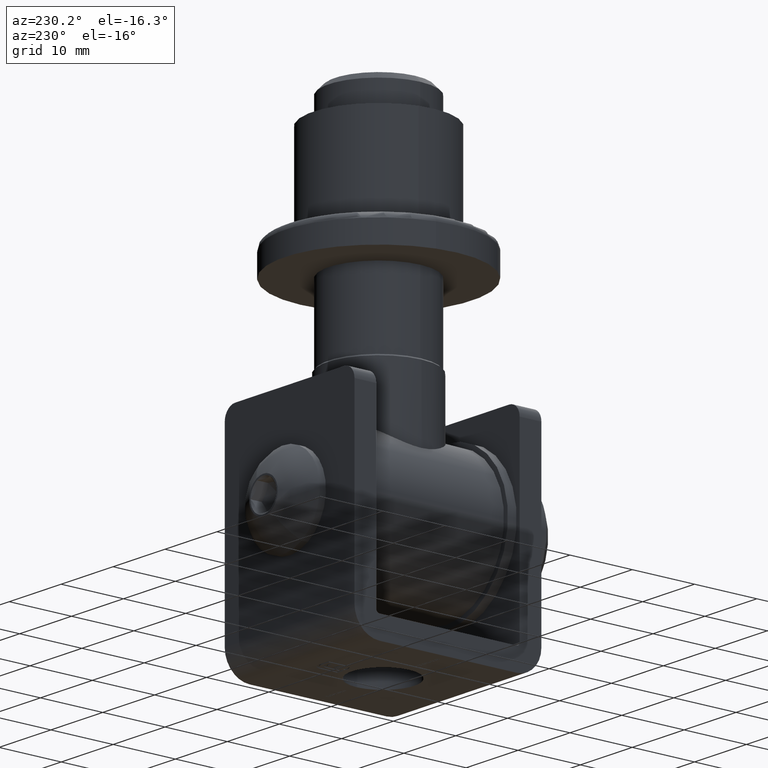
[diagram: clean part render]
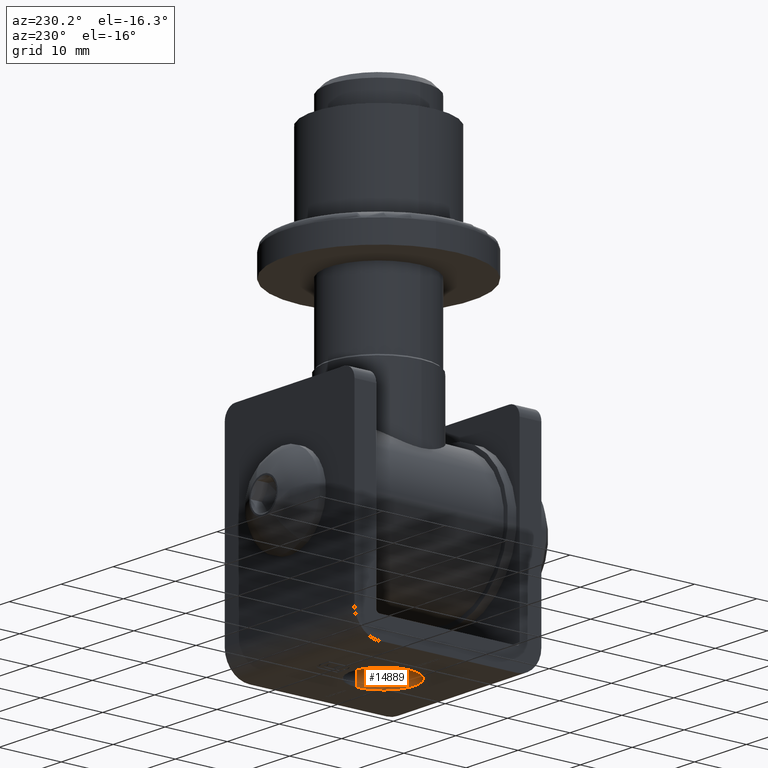
[diagram: same view with one face highlighted and labeled with its STEP entity id]
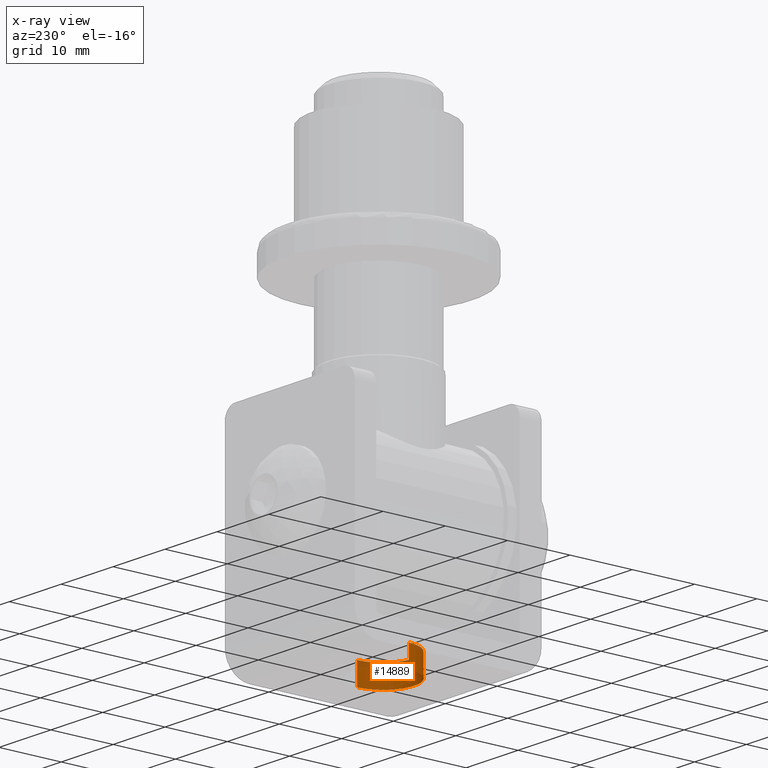
[diagram: x-ray of the same camera — body ghosted, the highlighted face saturated]
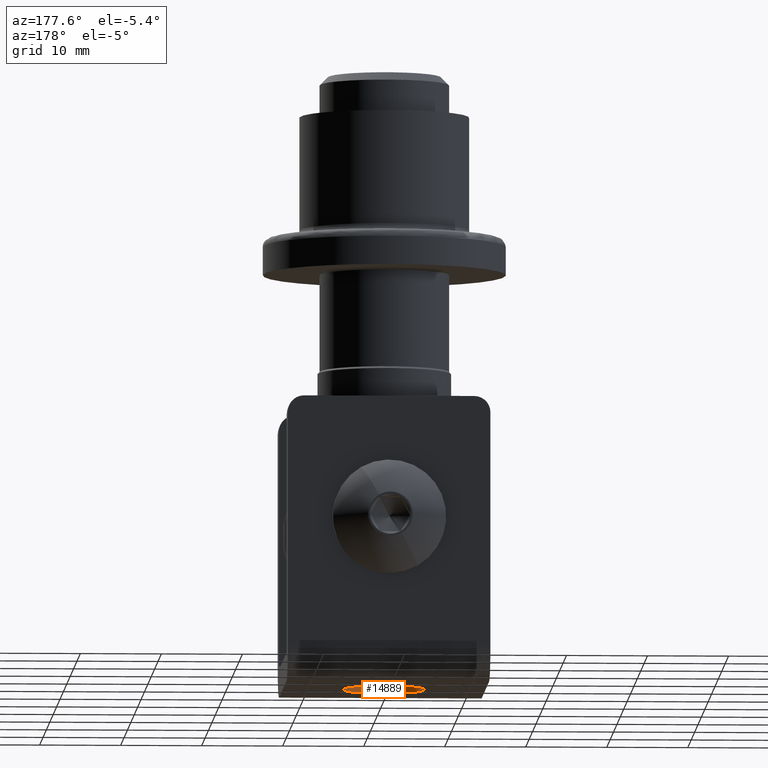
[diagram: same view with one face highlighted and labeled with its STEP entity id]
A machine part, auxiliary view. The second image highlights one B-rep face of the part: STEP entity #14889.
The next image is the same camera in x-ray: the body ghosted, the highlighted face saturated — about 16% of this face is hidden behind the body in this view.
A second angle (auxiliary view) of the same face is appended — the face is thin or edge-on in the first view.
In plain terms, the highlighted cylindrical surface (partial cylindrical patch) has radius 5 mm, axis along (-0, 0, -1).
Its self-contained STEP definition (entity closure, byte-faithful):
#69 = EDGE_CURVE ( 'NONE', #15082, #1572, #7711, .T. ) ;
#506 = CARTESIAN_POINT ( 'NONE',  ( 5.000000000000005329, 0.000000000000000000, 31.50000000000000000 ) ) ;
#859 = CARTESIAN_POINT ( 'NONE',  ( -5.000000000000001776, 6.123233995736771213E-16, 31.50000000000000000 ) ) ;
#1419 = DIRECTION ( 'NONE',  ( -0.000000000000000000, -0.000000000000000000, 1.000000000000000000 ) ) ;
#1538 = DIRECTION ( 'NONE',  ( -0.000000000000000000, -0.000000000000000000, 1.000000000000000000 ) ) ;
#1572 = VERTEX_POINT ( 'NONE', #6554 ) ;
#1828 = DIRECTION ( 'NONE',  ( 0.000000000000000000, 0.000000000000000000, 1.000000000000000000 ) ) ;
#2508 = FACE_OUTER_BOUND ( 'NONE', #16157, .T. ) ;
#3009 = CARTESIAN_POINT ( 'NONE',  ( 1.734723475976807094E-15, 0.000000000000000000, 31.50000000000000000 ) ) ;
#3164 = ORIENTED_EDGE ( 'NONE', *, *, #7215, .F. ) ;
#3281 = ORIENTED_EDGE ( 'NONE', *, *, #69, .T. ) ;
#3383 = LINE ( 'NONE', #4390, #5299 ) ;
#4390 = CARTESIAN_POINT ( 'NONE',  ( -5.000000000000001776, 6.123233995736771213E-16, 31.50000000000000000 ) ) ;
#4412 = EDGE_CURVE ( 'NONE', #15082, #10797, #13102, .T. ) ;
#4514 = CARTESIAN_POINT ( 'NONE',  ( 1.734723475976807094E-15, 0.000000000000000000, 31.50000000000000000 ) ) ;
#4649 = CIRCLE ( 'NONE', #5046, 5.000000000000003553 ) ;
#5046 = AXIS2_PLACEMENT_3D ( 'NONE', #5548, #5658, #15056 ) ;
#5299 = VECTOR ( 'NONE', #16195, 1000.000000000000000 ) ;
#5477 = AXIS2_PLACEMENT_3D ( 'NONE', #4514, #1828, #16607 ) ;
#5548 = CARTESIAN_POINT ( 'NONE',  ( 1.734723475976807094E-15, 0.000000000000000000, 35.00000000000000000 ) ) ;
#5658 = DIRECTION ( 'NONE',  ( 0.000000000000000000, 0.000000000000000000, 1.000000000000000000 ) ) ;
#6554 = CARTESIAN_POINT ( 'NONE',  ( 5.000000000000005329, 0.000000000000000000, 35.00000000000000000 ) ) ;
#7215 = EDGE_CURVE ( 'NONE', #10797, #7436, #3383, .T. ) ;
#7436 = VERTEX_POINT ( 'NONE', #12946 ) ;
#7581 = AXIS2_PLACEMENT_3D ( 'NONE', #3009, #1538, #13610 ) ;
#7711 = LINE ( 'NONE', #7975, #13386 ) ;
#7779 = EDGE_CURVE ( 'NONE', #1572, #7436, #4649, .T. ) ;
#7975 = CARTESIAN_POINT ( 'NONE',  ( 5.000000000000005329, 0.000000000000000000, 31.50000000000000000 ) ) ;
#10797 = VERTEX_POINT ( 'NONE', #859 ) ;
#12946 = CARTESIAN_POINT ( 'NONE',  ( -5.000000000000001776, 6.123233995736771213E-16, 35.00000000000000000 ) ) ;
#13102 = CIRCLE ( 'NONE', #5477, 5.000000000000003553 ) ;
#13386 = VECTOR ( 'NONE', #1419, 1000.000000000000000 ) ;
#13610 = DIRECTION ( 'NONE',  ( 1.000000000000000000, 0.000000000000000000, 0.000000000000000000 ) ) ;
#13612 = ORIENTED_EDGE ( 'NONE', *, *, #7779, .T. ) ;
#14889 = ADVANCED_FACE ( 'NONE', ( #2508 ), #16417, .F. ) ;
#15056 = DIRECTION ( 'NONE',  ( 1.000000000000000000, 0.000000000000000000, 0.000000000000000000 ) ) ;
#15082 = VERTEX_POINT ( 'NONE', #506 ) ;
#16157 = EDGE_LOOP ( 'NONE', ( #3164, #16667, #3281, #13612 ) ) ;
#16195 = DIRECTION ( 'NONE',  ( -0.000000000000000000, -0.000000000000000000, 1.000000000000000000 ) ) ;
#16417 = CYLINDRICAL_SURFACE ( 'NONE', #7581, 5.000000000000003553 ) ;
#16607 = DIRECTION ( 'NONE',  ( 1.000000000000000000, 0.000000000000000000, 0.000000000000000000 ) ) ;
#16667 = ORIENTED_EDGE ( 'NONE', *, *, #4412, .F. ) ;